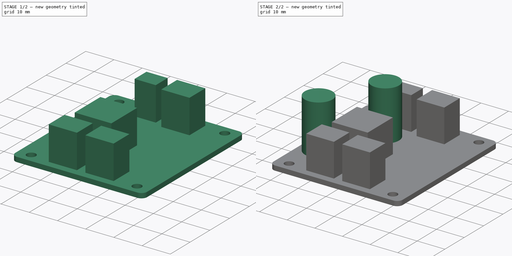
[diagram: build sequence overview — one tinted view per stage of 2, left to right]
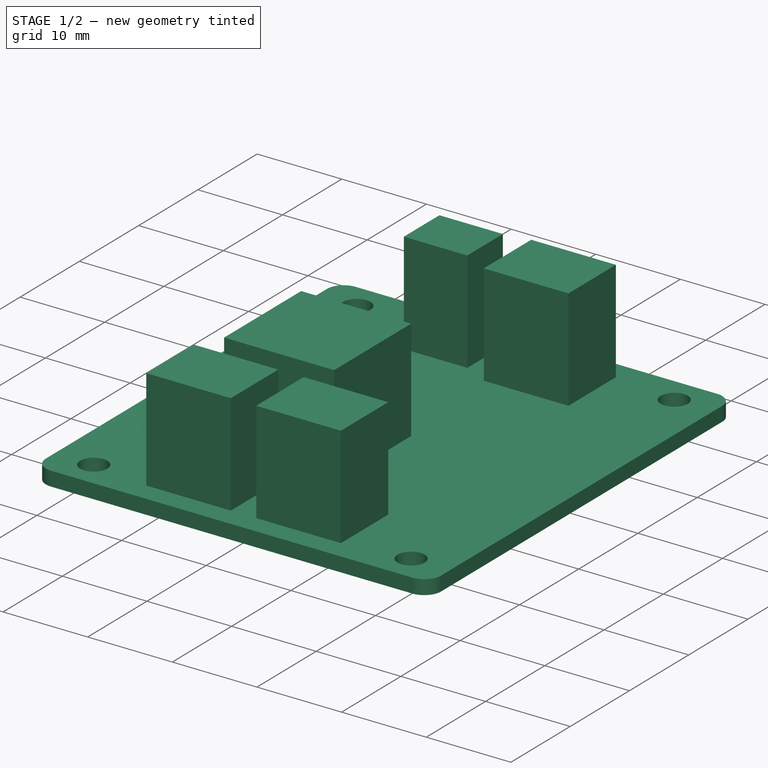
[diagram: stage 1 of 2 — iso view after this stage's code; geometry added in this stage tinted green]
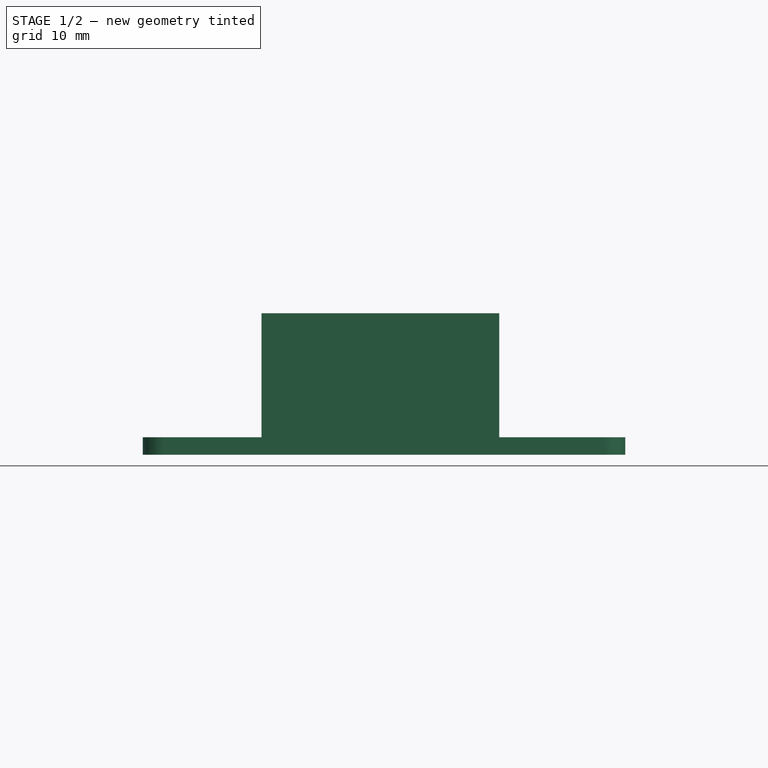
[diagram: stage 1 of 2 — front view after this stage's code; geometry added in this stage tinted green]
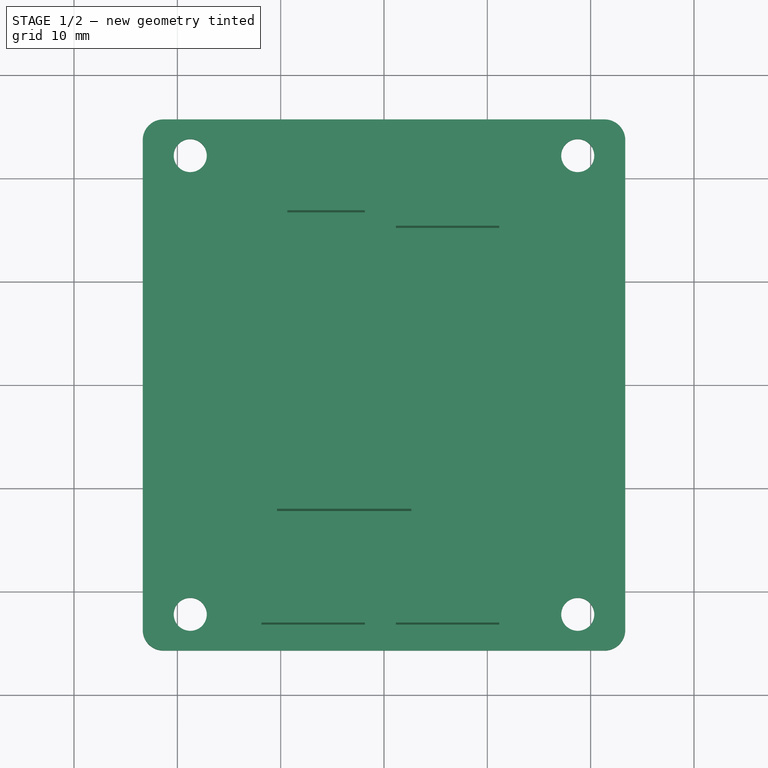
[diagram: stage 1 of 2 — top view after this stage's code; geometry added in this stage tinted green]
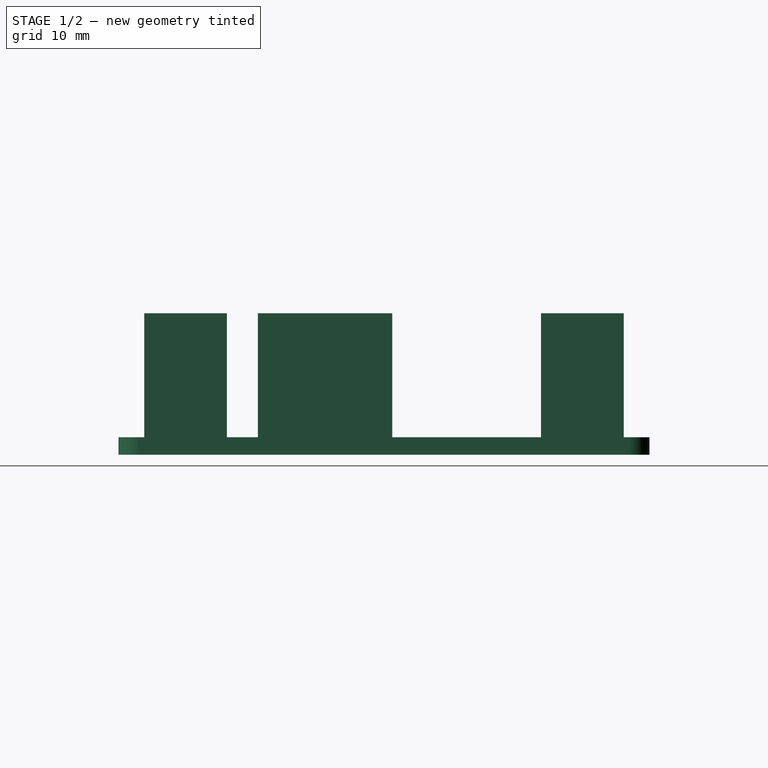
[diagram: stage 1 of 2 — right view after this stage's code; geometry added in this stage tinted green]
FCSTD DOCUMENT  (FreeCAD 0.21R33771 (Git))
Label: DF_robot_Powermodule
License: All rights reserved
LicenseURL: http://en.wikipedia.org/wiki/All_rights_reserved
objects: Sketcher::SketchObject×3, PartDesign::Pad×3, PartDesign::Body×1
note: 10 computed .brp shape members not serialized (recipe doc carries the construction recipe); baked Part::Feature solids carry a one-line shape summary decoded from their .brp

FEATURE [Sketcher::SketchObject] Sketch
  FullyConstrained = true
  MapMode = 5
  Support = -> [XY_Plane]
  sketch-geometry (14):
    g0: LineSegment StartX=-21.35 StartY=25.7 StartZ=0 EndX=21.35 EndY=25.7 EndZ=0
    g1: LineSegment StartX=23.35 StartY=23.7 StartZ=0 EndX=23.35 EndY=-23.7 EndZ=0
    g2: LineSegment StartX=21.35 StartY=-25.7 StartZ=0 EndX=-21.35 EndY=-25.7 EndZ=0
    g3: LineSegment StartX=-23.35 StartY=-23.7 StartZ=0 EndX=-23.35 EndY=23.7 EndZ=0
    g4: LineSegment StartX=23.35 StartY=0 StartZ=0 EndX=-23.35 EndY=0 EndZ=0
    g5: LineSegment StartX=0 StartY=25.7 StartZ=0 EndX=0 EndY=-25.7 EndZ=0
    g6: Circle CenterX=-18.75 CenterY=-22.2 CenterZ=0 NormalX=0 NormalY=0 NormalZ=1 AngleXU=0 Radius=1.6
    g7: Circle CenterX=18.75 CenterY=-22.2 CenterZ=0 NormalX=0 NormalY=0 NormalZ=1 AngleXU=0 Radius=1.6
    g8: Circle CenterX=18.75 CenterY=22.2 CenterZ=0 NormalX=0 NormalY=0 NormalZ=1 AngleXU=0 Radius=1.6
    g9: Circle CenterX=-18.75 CenterY=22.2 CenterZ=0 NormalX=0 NormalY=0 NormalZ=1 AngleXU=0 Radius=1.6
    g10: ArcOfCircle CenterX=-21.35 CenterY=23.7 CenterZ=0 NormalX=0 NormalY=0 NormalZ=1 AngleXU=0 Radius=2 StartAngle=1.5708 EndAngle=3.14159
    g11: ArcOfCircle CenterX=-21.35 CenterY=-23.7 CenterZ=0 NormalX=0 NormalY=0 NormalZ=1 AngleXU=0 Radius=2 StartAngle=3.14159 EndAngle=4.71239
    g12: ArcOfCircle CenterX=21.35 CenterY=-23.7 CenterZ=0 NormalX=0 NormalY=0 NormalZ=1 AngleXU=0 Radius=2 StartAngle=4.71239 EndAngle=6.28319
    g13: ArcOfCircle CenterX=21.35 CenterY=23.7 CenterZ=0 NormalX=0 NormalY=0 NormalZ=1 AngleXU=0 Radius=2 StartAngle=-9e-16 EndAngle=1.5708
  constraints (37):
    c: Horizontal(g0)
    c: Horizontal(g2)
    c: Vertical(g1)
    c: Vertical(g3)
    c: PointOnObject(g4,g1)
    c: Horizontal(g4)
    c: PointOnObject(g5,g2)
    c: Vertical(g5)
    c: PointOnObject(g-1,g4)
    c: PointOnObject(g-1,g5)
    c: Diameter(g9) = 3.2
    c: Equal(g9,g8)
    c: Equal(g6,g9)
    c: Equal(g7,g9)
    c: DistanceX(g9,g8) = 37.5
    c: Symmetric(g9,g8,g5)
    c: DistanceY(g6,g9) = 44.4
    c: Symmetric(g9,g6,g4)
    c: Symmetric(g7,g6,g5)
    c: PointOnObject(g5,g0)
    c: PointOnObject(g4,g3)
    c: DistanceX(g4,g-1) = 23.35
    c: DistanceY(g-1,g5) = 25.7
    c: DistanceY(g5,g5) = 51.4
    c: DistanceX(g4,g4) = 46.7
    c: Tangent(g0,g10) = 1.5708
    c: Tangent(g3,g10) = 1.5708
    c: Tangent(g2,g11) = 1.5708
    c: Tangent(g3,g11) = 1.5708
    c: Tangent(g1,g12) = 1.5708
    c: Tangent(g2,g12) = 1.5708
    c: Tangent(g0,g13) = 1.5708
    c: Tangent(g1,g13) = 1.5708
    c: Equal(g10,g13)
    c: Equal(g11,g10)
    c: Equal(g12,g10)
    c: Radius(g10) = 2
FEATURE [PartDesign::Pad] Pad
  Direction = (0,0,1)
  Length = 1.7
  Length2 = 10
  Profile = -> Sketch
  ReferenceAxis = -> Sketch [N_Axis]
  Type = 0
FEATURE [Sketcher::SketchObject] Sketch001
  ExternalGeometry = -> [Pad]
  FullyConstrained = true
  MapMode = 5
  Placement = pos=(0,0,1.7) rot=(0,0,1;0rad)
  Support = -> [Pad]
  sketch-geometry (20):
    g0: LineSegment StartX=-11.85 StartY=-15.2 StartZ=0 EndX=-1.85 EndY=-15.2 EndZ=0
    g1: LineSegment StartX=-1.85 StartY=-15.2 StartZ=0 EndX=-1.85 EndY=-23.2 EndZ=0
    g2: LineSegment StartX=-1.85 StartY=-23.2 StartZ=0 EndX=-11.85 EndY=-23.2 EndZ=0
    g3: LineSegment StartX=-11.85 StartY=-23.2 StartZ=0 EndX=-11.85 EndY=-15.2 EndZ=0
    g4: LineSegment StartX=1.15 StartY=-15.2 StartZ=0 EndX=11.15 EndY=-15.2 EndZ=0
    g5: LineSegment StartX=11.15 StartY=-15.2 StartZ=0 EndX=11.15 EndY=-23.2 EndZ=0
    g6: LineSegment StartX=11.15 StartY=-23.2 StartZ=0 EndX=1.15 EndY=-23.2 EndZ=0
    g7: LineSegment StartX=1.15 StartY=-23.2 StartZ=0 EndX=1.15 EndY=-15.2 EndZ=0
    g8: LineSegment StartX=11.15 StartY=23.2 StartZ=0 EndX=1.15 EndY=23.2 EndZ=0
    g9: LineSegment StartX=1.15 StartY=23.2 StartZ=0 EndX=1.15 EndY=15.2 EndZ=0
    g10: LineSegment StartX=1.15 StartY=15.2 StartZ=0 EndX=11.15 EndY=15.2 EndZ=0
    g11: LineSegment StartX=11.15 StartY=15.2 StartZ=0 EndX=11.15 EndY=23.2 EndZ=0
    g12: LineSegment StartX=-1.85 StartY=16.7 StartZ=0 EndX=-9.35 EndY=16.7 EndZ=0
    g13: LineSegment StartX=-9.35 StartY=16.7 StartZ=0 EndX=-9.35 EndY=22.7 EndZ=0
    g14: LineSegment StartX=-9.35 StartY=22.7 StartZ=0 EndX=-1.85 EndY=22.7 EndZ=0
    g15: LineSegment StartX=-1.85 StartY=22.7 StartZ=0 EndX=-1.85 EndY=16.7 EndZ=0
    g16: LineSegment StartX=-10.35 StartY=0.8 StartZ=0 EndX=2.65 EndY=0.8 EndZ=0
    g17: LineSegment StartX=2.65 StartY=0.8 StartZ=0 EndX=2.65 EndY=-12.2 EndZ=0
    g18: LineSegment StartX=2.65 StartY=-12.2 StartZ=0 EndX=-10.35 EndY=-12.2 EndZ=0
    g19: LineSegment StartX=-10.35 StartY=-12.2 StartZ=0 EndX=-10.35 EndY=0.8 EndZ=0
  constraints (60):
    c: Coincident(g0,g1)
    c: Coincident(g1,g2)
    c: Coincident(g2,g3)
    c: Coincident(g3,g0)
    c: Horizontal(g0)
    c: Horizontal(g2)
    c: Vertical(g1)
    c: Vertical(g3)
    c: Coincident(g4,g5)
    c: Coincident(g5,g6)
    c: Coincident(g6,g7)
    c: Coincident(g7,g4)
    c: Horizontal(g4)
    c: Horizontal(g6)
    c: Vertical(g5)
    c: Vertical(g7)
    c: Coincident(g8,g9)
    c: Coincident(g9,g10)
    c: Coincident(g10,g11)
    c: Coincident(g11,g8)
    c: Horizontal(g8)
    c: Horizontal(g10)
    c: Vertical(g9)
    c: Vertical(g11)
    c: Coincident(g12,g13)
    c: Coincident(g13,g14)
    c: Coincident(g14,g15)
    c: Coincident(g15,g12)
    c: Horizontal(g12)
    c: Horizontal(g14)
    c: Vertical(g13)
    c: Vertical(g15)
    c: Coincident(g16,g17)
    c: Coincident(g17,g18)
    c: Coincident(g18,g19)
    c: Coincident(g19,g16)
    c: Horizontal(g16)
    c: Horizontal(g18)
    c: Vertical(g17)
    c: Vertical(g19)
    c: DistanceX(g14,g14) = 7.5
    c: DistanceY(g15,g15) = 6
    c: DistanceY(g13,g-3) = 3
    c: DistanceX(g-4,g13) = 14
    c: DistanceX(g8,g8) = 10
    c: DistanceY(g9,g9) = 8
    c: DistanceY(g8,g-3) = 2.5
    c: DistanceX(g12,g9) = 3
    c: Equal(g11,g5)
    c: Equal(g8,g4)
    c: Equal(g1,g11)
    c: Equal(g0,g8)
    c: PointOnObject(g4,g11)
    c: PointOnObject(g6,g2)
    c: PointOnObject(g0,g15)
    c: DistanceY(g-6,g5) = 2.5
    c: DistanceY(g0,g18) = 3
    c: Equal(g19,g16)
    c: DistanceY(g19,g19) = 13
    c: DistanceX(g-4,g16) = 13
FEATURE [PartDesign::Pad] Pad001
  BaseFeature = -> Pad
  Direction = (0,0,1)
  Length = 12
  Length2 = 10
  Profile = -> Sketch001
  ReferenceAxis = -> Sketch001 [N_Axis]
  Type = 0
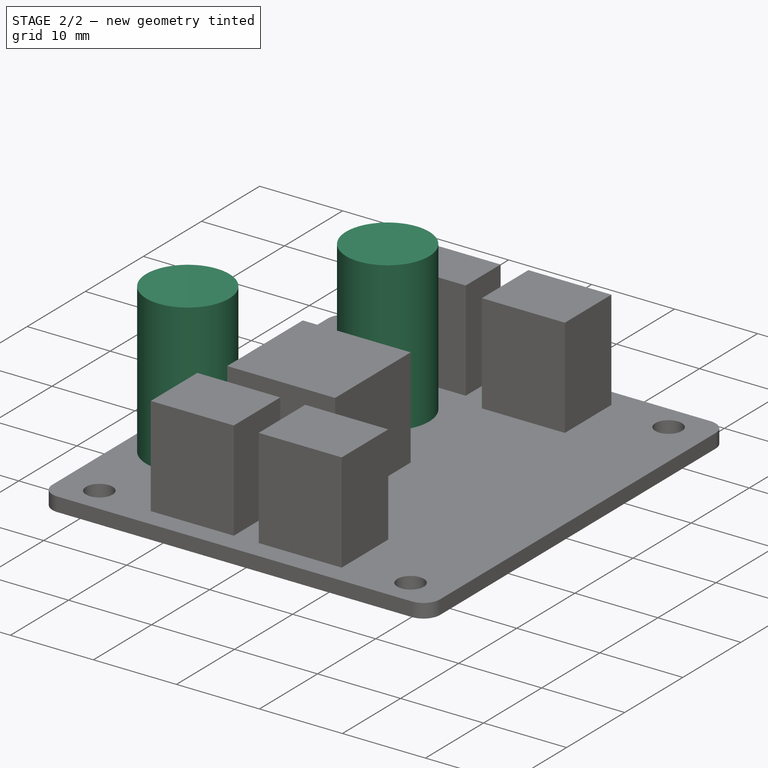
[diagram: stage 2 of 2 — iso view after this stage's code; geometry added in this stage tinted green]
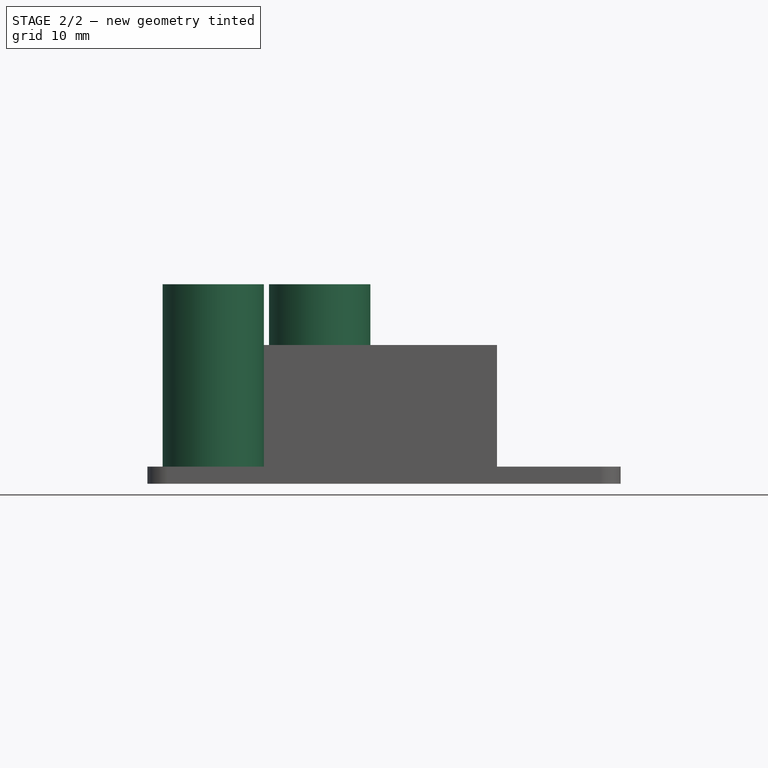
[diagram: stage 2 of 2 — front view after this stage's code; geometry added in this stage tinted green]
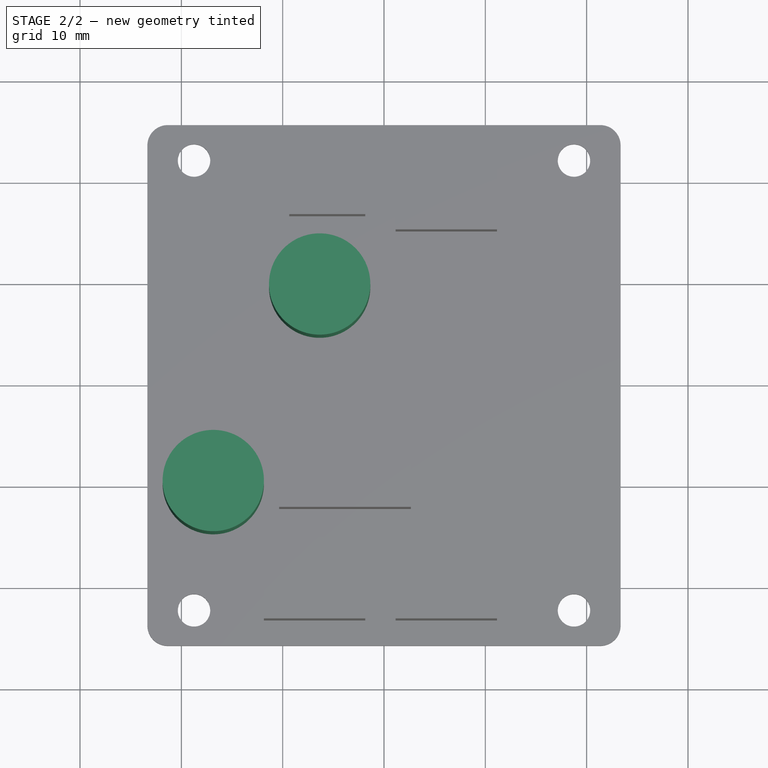
[diagram: stage 2 of 2 — top view after this stage's code; geometry added in this stage tinted green]
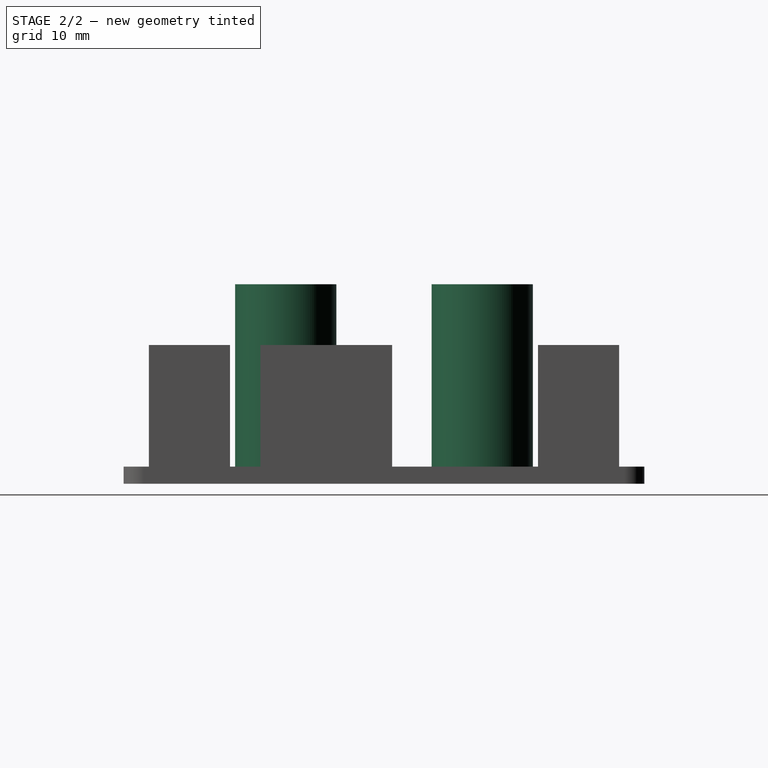
[diagram: stage 2 of 2 — right view after this stage's code; geometry added in this stage tinted green]
FEATURE [Sketcher::SketchObject] Sketch002
  ExternalGeometry = -> [Pad001]
  FullyConstrained = true
  MapMode = 5
  Placement = pos=(0,0,1.7) rot=(0,0,1;0rad)
  Support = -> [Pad001]
  sketch-geometry (2):
    g0: Circle CenterX=-16.85 CenterY=-9.7 CenterZ=0 NormalX=0 NormalY=0 NormalZ=1 AngleXU=0 Radius=5
    g1: Circle CenterX=-6.35 CenterY=9.7 CenterZ=0 NormalX=0 NormalY=0 NormalZ=1 AngleXU=0 Radius=5
  constraints (6):
    c: Equal(g0,g1)
    c: Diameter(g0) = 10
    c: DistanceX(g-3,g0) = 6.5
    c: DistanceY(g-5,g0) = 16
    c: DistanceY(g1,g-4) = 16
    c: DistanceX(g-3,g1) = 17
FEATURE [PartDesign::Pad] Pad002
  BaseFeature = -> Pad001
  Direction = (0,0,1)
  Length = 18
  Length2 = 10
  Profile = -> Sketch002
  ReferenceAxis = -> Sketch002 [N_Axis]
  Type = 0
FEATURE [PartDesign::Body] Body
  Group = -> [Sketch,Pad,Sketch001,Pad001,Sketch002,Pad002]
  Origin = -> Origin
  Tip = -> Pad002
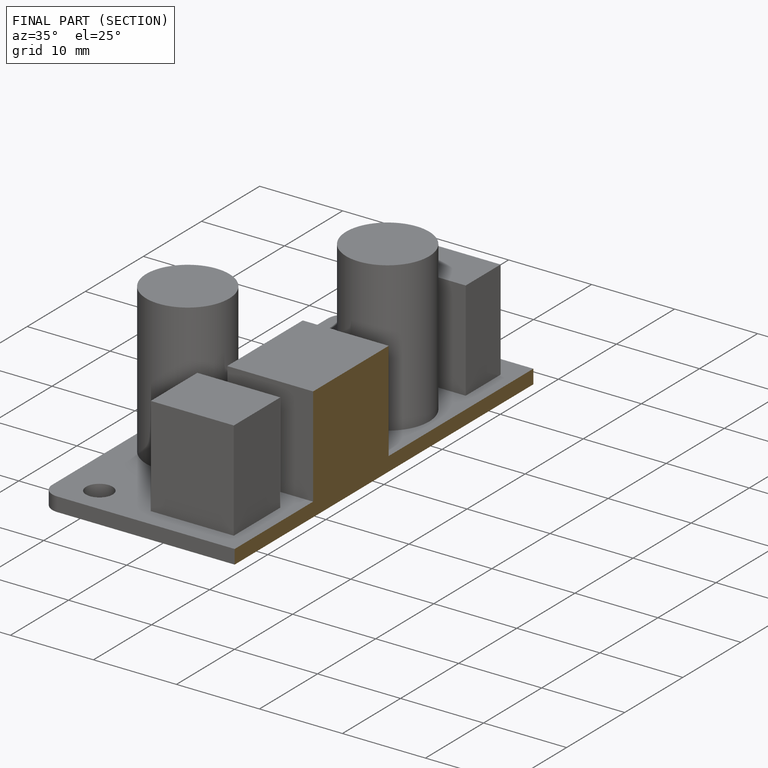
[diagram: finished part — half-section view (interior)]
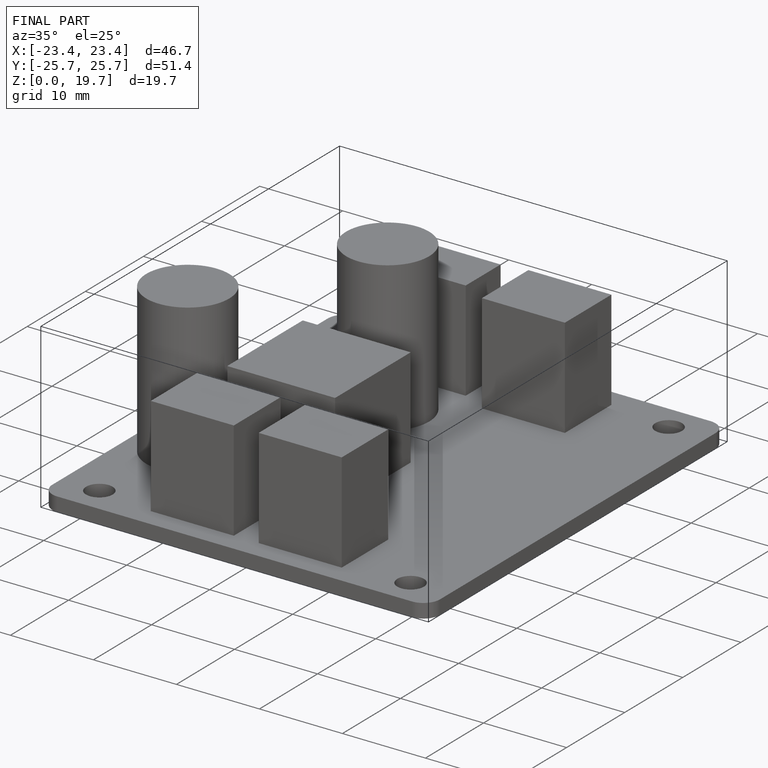
[diagram: finished part — iso view with bounding-box wireframe]
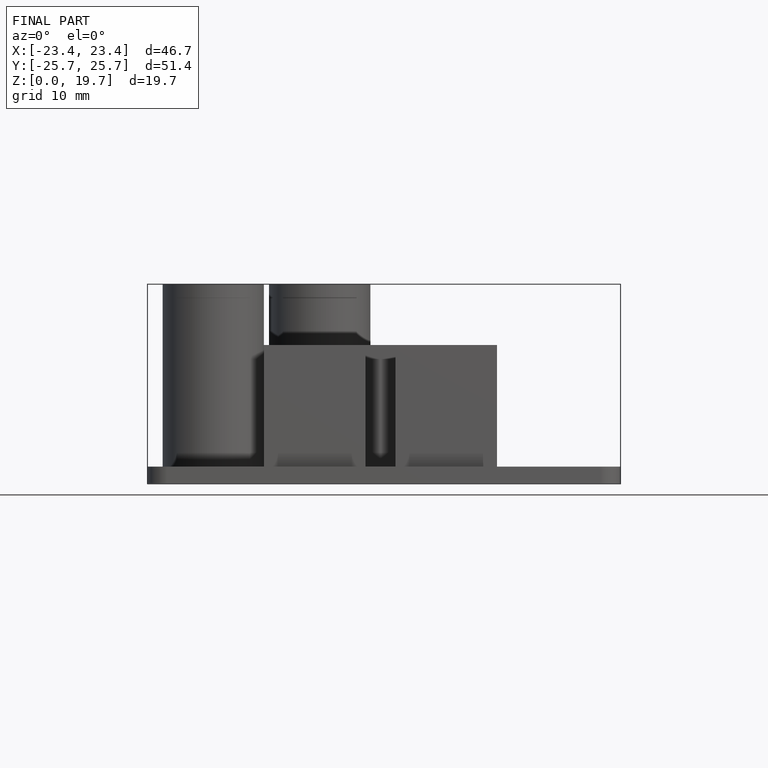
[diagram: finished part — front view with bounding-box wireframe]
